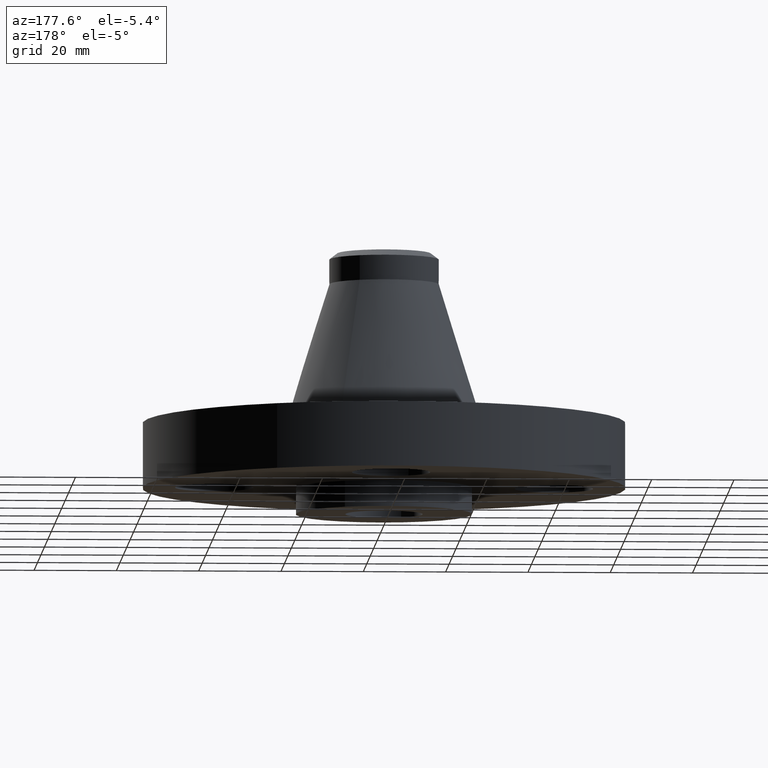
[diagram: clean part render]
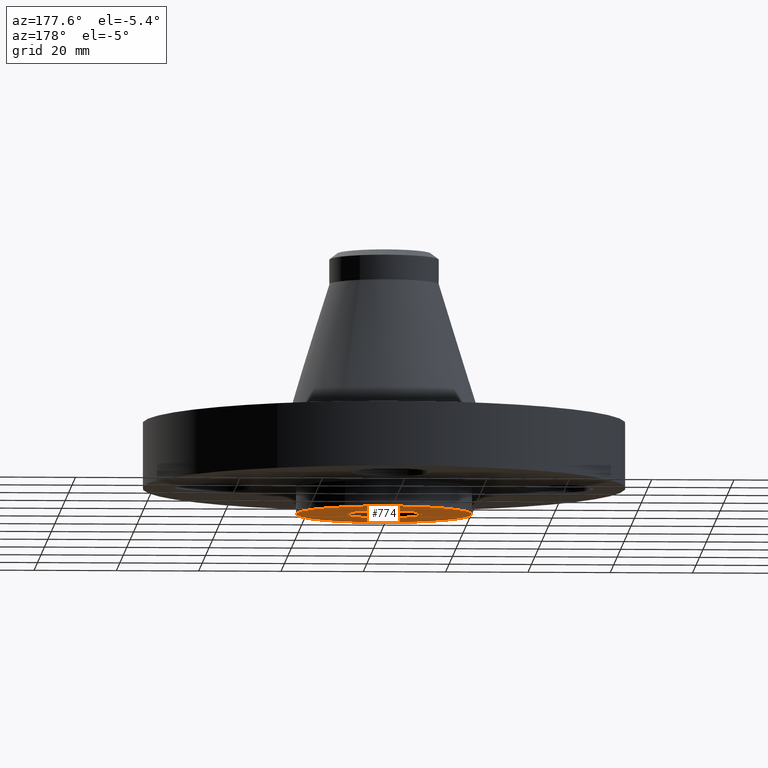
[diagram: same view with one face highlighted and labeled with its STEP entity id]
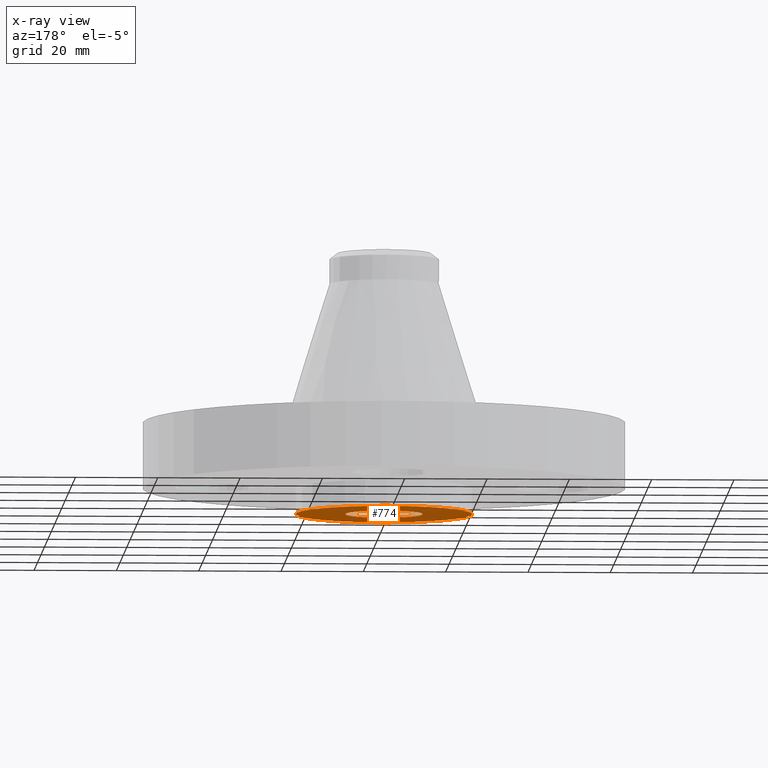
[diagram: x-ray of the same camera — body ghosted, the highlighted face saturated]
A machine part, auxiliary view. The second image highlights one B-rep face of the part: STEP entity #774.
The next image is the same camera in x-ray: the body ghosted, the highlighted face saturated — about 0% of this face is hidden behind the body in this view.
In plain terms, the highlighted planar face has unit normal (0, 0, -1).
Its self-contained STEP definition (entity closure, byte-faithful):
#411=AXIS2_PLACEMENT_3D('Circle Axis2P3D',#409,#410,$) ;
#449=AXIS2_PLACEMENT_3D('Circle Axis2P3D',#447,#448,$) ;
#750=AXIS2_PLACEMENT_3D('Plane Axis2P3D',#747,#748,#749) ;
#758=AXIS2_PLACEMENT_3D('Circle Axis2P3D',#756,#757,$) ;
#767=AXIS2_PLACEMENT_3D('Circle Axis2P3D',#765,#766,$) ;
#409=CARTESIAN_POINT('Axis2P3D Location',(0.,0.,-0.25)) ;
#413=CARTESIAN_POINT('Vertex',(0.405114580122,0.741557264785,-0.250000000001)) ;
#415=CARTESIAN_POINT('Vertex',(-0.405114580122,-0.741557264836,-0.250000000001)) ;
#447=CARTESIAN_POINT('Axis2P3D Location',(0.,0.,-0.250000000001)) ;
#747=CARTESIAN_POINT('Axis2P3D Location',(0.,0.371000000001,-0.250000000001)) ;
#756=CARTESIAN_POINT('Axis2P3D Location',(-4.36654736865E-011,-1.48654492041E-012,-0.250000000001)) ;
#760=CARTESIAN_POINT('Vertex',(0.177866874823,0.325583130462,-0.250000000001)) ;
#762=CARTESIAN_POINT('Vertex',(-0.177866874823,-0.325583130462,-0.25)) ;
#765=CARTESIAN_POINT('Axis2P3D Location',(1.28117638982E-011,-3.23401148381E-011,-0.250000000001)) ;
#410=DIRECTION('Axis2P3D Direction',(0.,0.,-0.0393700787402)) ;
#448=DIRECTION('Axis2P3D Direction',(0.,0.,-0.0393700787402)) ;
#748=DIRECTION('Axis2P3D Direction',(0.,0.,-0.0393700787402)) ;
#749=DIRECTION('Axis2P3D XDirection',(0.0393700787402,0.,0.)) ;
#757=DIRECTION('Axis2P3D Direction',(0.,0.,-0.0393700787402)) ;
#766=DIRECTION('Axis2P3D Direction',(0.,0.,-0.0393700787402)) ;
#753=ORIENTED_EDGE('',*,*,#451,.T.) ;
#754=ORIENTED_EDGE('',*,*,#417,.T.) ;
#771=ORIENTED_EDGE('',*,*,#764,.F.) ;
#772=ORIENTED_EDGE('',*,*,#769,.F.) ;
#773=FACE_BOUND('',#770,.T.) ;
#774=ADVANCED_FACE('PartBody',(#755,#773),#751,.T.) ;
#412=CIRCLE('generated circle',#411,0.845000000003) ;
#450=CIRCLE('generated circle',#449,0.845000000003) ;
#759=CIRCLE('generated circle',#758,0.371000000003) ;
#768=CIRCLE('generated circle',#767,0.371000000003) ;
#417=EDGE_CURVE('',#414,#416,#412,.T.) ;
#451=EDGE_CURVE('',#416,#414,#450,.T.) ;
#764=EDGE_CURVE('',#761,#763,#759,.T.) ;
#769=EDGE_CURVE('',#763,#761,#768,.T.) ;
#752=EDGE_LOOP('',(#753,#754)) ;
#770=EDGE_LOOP('',(#771,#772)) ;
#755=FACE_OUTER_BOUND('',#752,.T.) ;
#751=PLANE('',#750) ;
#414=VERTEX_POINT('',#413) ;
#416=VERTEX_POINT('',#415) ;
#761=VERTEX_POINT('',#760) ;
#763=VERTEX_POINT('',#762) ;